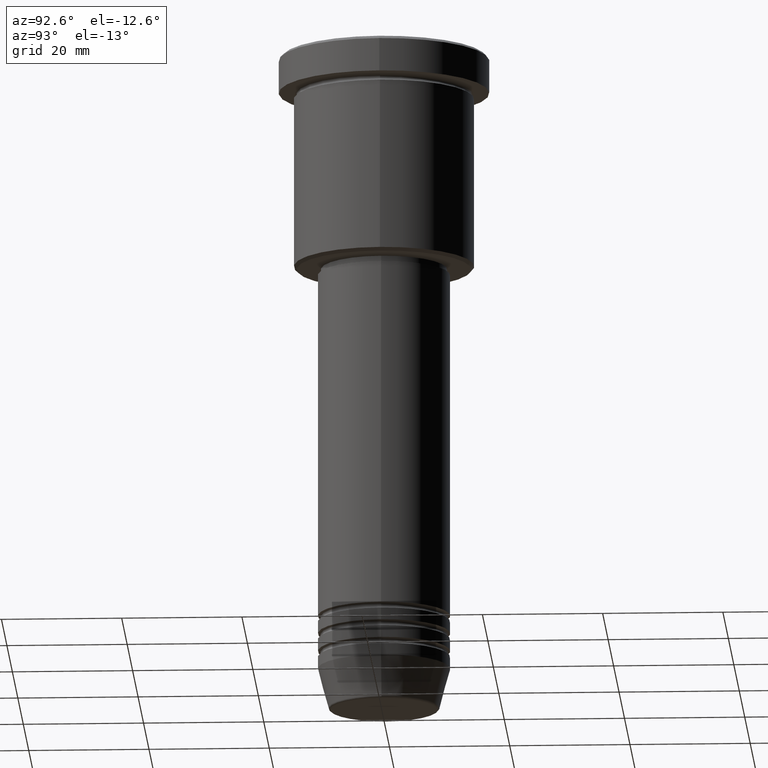
[diagram: clean part render]
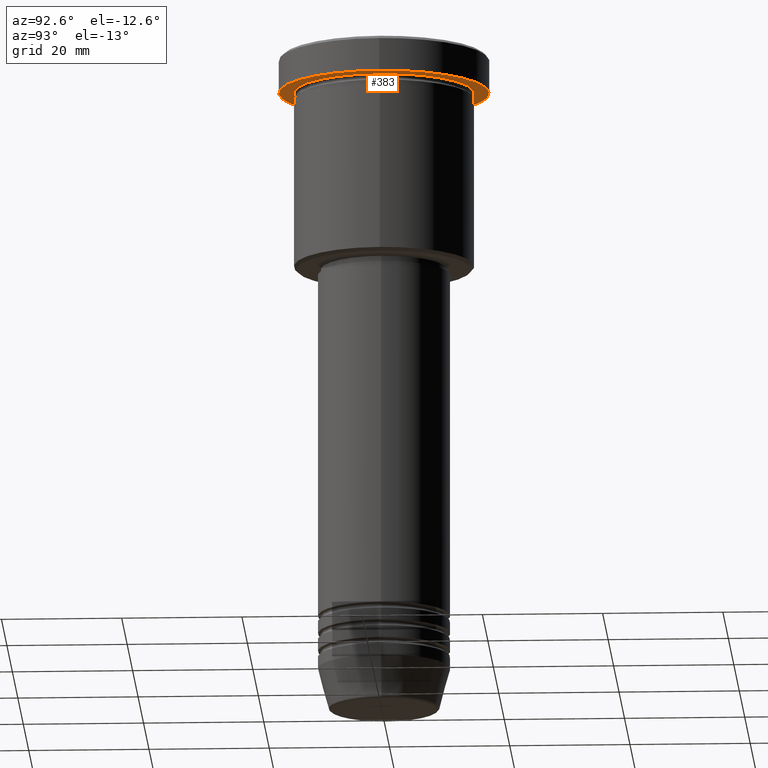
[diagram: same view with one face highlighted and labeled with its STEP entity id]
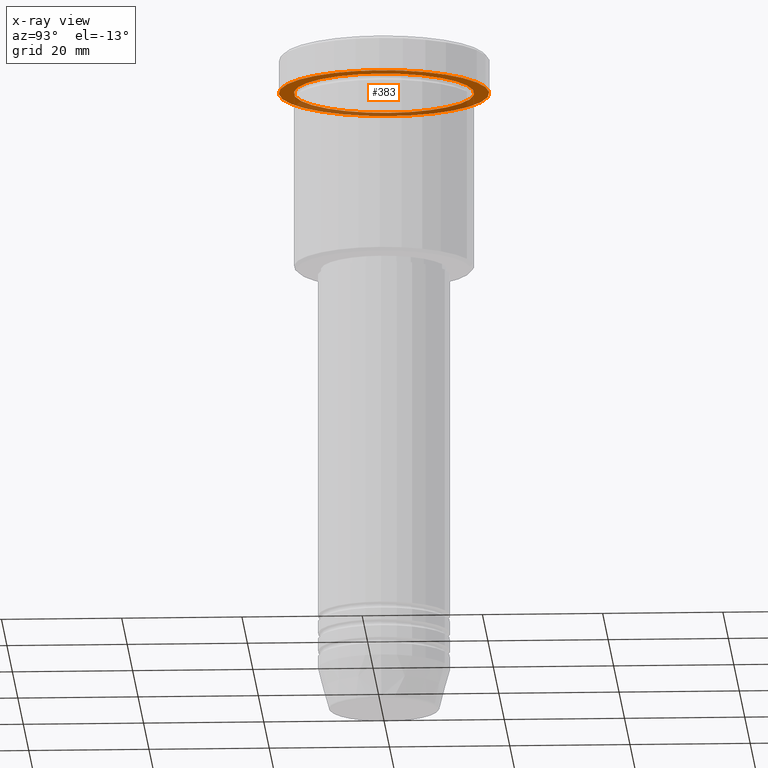
[diagram: x-ray of the same camera — body ghosted, the highlighted face saturated]
A machine part, auxiliary view. The second image highlights one B-rep face of the part: STEP entity #383.
The next image is the same camera in x-ray: the body ghosted, the highlighted face saturated — about 34% of this face is hidden behind the body in this view.
In plain terms, the highlighted planar face has unit normal (0, 0, -1).
Its self-contained STEP definition (entity closure, byte-faithful):
#13 = ORIENTED_EDGE ( 'NONE', *, *, #533, .F. ) ;
#70 = DIRECTION ( 'NONE',  ( 0.000000000000000000, 0.000000000000000000, -1.000000000000000000 ) ) ;
#79 = VERTEX_POINT ( 'NONE', #237 ) ;
#97 = EDGE_CURVE ( 'NONE', #604, #79, #666, .T. ) ;
#103 = VERTEX_POINT ( 'NONE', #768 ) ;
#108 = CARTESIAN_POINT ( 'NONE',  ( 0.000000000000000000, 0.000000000000000000, -5.999999999999995559 ) ) ;
#167 = VERTEX_POINT ( 'NONE', #1117 ) ;
#171 = CIRCLE ( 'NONE', #188, 17.50000000000000000 ) ;
#188 = AXIS2_PLACEMENT_3D ( 'NONE', #355, #908, #1165 ) ;
#205 = AXIS2_PLACEMENT_3D ( 'NONE', #234, #70, #585 ) ;
#234 = CARTESIAN_POINT ( 'NONE',  ( 0.000000000000000000, 17.50000000000000000, -5.999999999999995559 ) ) ;
#237 = CARTESIAN_POINT ( 'NONE',  ( -15.00000000000000000, 0.000000000000000000, -5.999999999999994671 ) ) ;
#314 = FACE_BOUND ( 'NONE', #391, .T. ) ;
#326 = DIRECTION ( 'NONE',  ( -1.000000000000000000, 0.000000000000000000, 0.000000000000000000 ) ) ;
#340 = EDGE_LOOP ( 'NONE', ( #352, #13 ) ) ;
#352 = ORIENTED_EDGE ( 'NONE', *, *, #700, .F. ) ;
#355 = CARTESIAN_POINT ( 'NONE',  ( 0.000000000000000000, 0.000000000000000000, -5.999999999999995559 ) ) ;
#377 = DIRECTION ( 'NONE',  ( -0.000000000000000000, -0.000000000000000000, 1.000000000000000000 ) ) ;
#383 = ADVANCED_FACE ( 'NONE', ( #314, #1051 ), #1055, .T. ) ;
#391 = EDGE_LOOP ( 'NONE', ( #823, #445 ) ) ;
#435 = CARTESIAN_POINT ( 'NONE',  ( 0.000000000000000000, 0.000000000000000000, -5.999999999999995559 ) ) ;
#441 = DIRECTION ( 'NONE',  ( -0.000000000000000000, -0.000000000000000000, 1.000000000000000000 ) ) ;
#445 = ORIENTED_EDGE ( 'NONE', *, *, #97, .T. ) ;
#466 = DIRECTION ( 'NONE',  ( 1.000000000000000000, 0.000000000000000000, 0.000000000000000000 ) ) ;
#496 = CARTESIAN_POINT ( 'NONE',  ( 0.000000000000000000, 0.000000000000000000, -5.999999999999995559 ) ) ;
#533 = EDGE_CURVE ( 'NONE', #103, #167, #171, .T. ) ;
#548 = EDGE_CURVE ( 'NONE', #79, #604, #710, .T. ) ;
#585 = DIRECTION ( 'NONE',  ( -1.000000000000000000, 0.000000000000000000, -0.000000000000000000 ) ) ;
#604 = VERTEX_POINT ( 'NONE', #826 ) ;
#621 = AXIS2_PLACEMENT_3D ( 'NONE', #108, #377, #466 ) ;
#666 = CIRCLE ( 'NONE', #725, 15.00000000000000000 ) ;
#700 = EDGE_CURVE ( 'NONE', #167, #103, #1096, .T. ) ;
#710 = CIRCLE ( 'NONE', #1008, 15.00000000000000000 ) ;
#724 = DIRECTION ( 'NONE',  ( -1.000000000000000000, 0.000000000000000000, 0.000000000000000000 ) ) ;
#725 = AXIS2_PLACEMENT_3D ( 'NONE', #496, #970, #326 ) ;
#768 = CARTESIAN_POINT ( 'NONE',  ( -17.50000000000000000, 2.143131898507868248E-15, -5.999999999999995559 ) ) ;
#823 = ORIENTED_EDGE ( 'NONE', *, *, #548, .T. ) ;
#826 = CARTESIAN_POINT ( 'NONE',  ( 15.00000000000000000, 1.836970198721029589E-15, -5.999999999999994671 ) ) ;
#908 = DIRECTION ( 'NONE',  ( -0.000000000000000000, -0.000000000000000000, 1.000000000000000000 ) ) ;
#970 = DIRECTION ( 'NONE',  ( -0.000000000000000000, -0.000000000000000000, 1.000000000000000000 ) ) ;
#1008 = AXIS2_PLACEMENT_3D ( 'NONE', #435, #441, #724 ) ;
#1051 = FACE_OUTER_BOUND ( 'NONE', #340, .T. ) ;
#1055 = PLANE ( 'NONE',  #205 ) ;
#1096 = CIRCLE ( 'NONE', #621, 17.50000000000000000 ) ;
#1117 = CARTESIAN_POINT ( 'NONE',  ( 17.50000000000000000, 0.000000000000000000, -5.999999999999995559 ) ) ;
#1165 = DIRECTION ( 'NONE',  ( 1.000000000000000000, 0.000000000000000000, 0.000000000000000000 ) ) ;